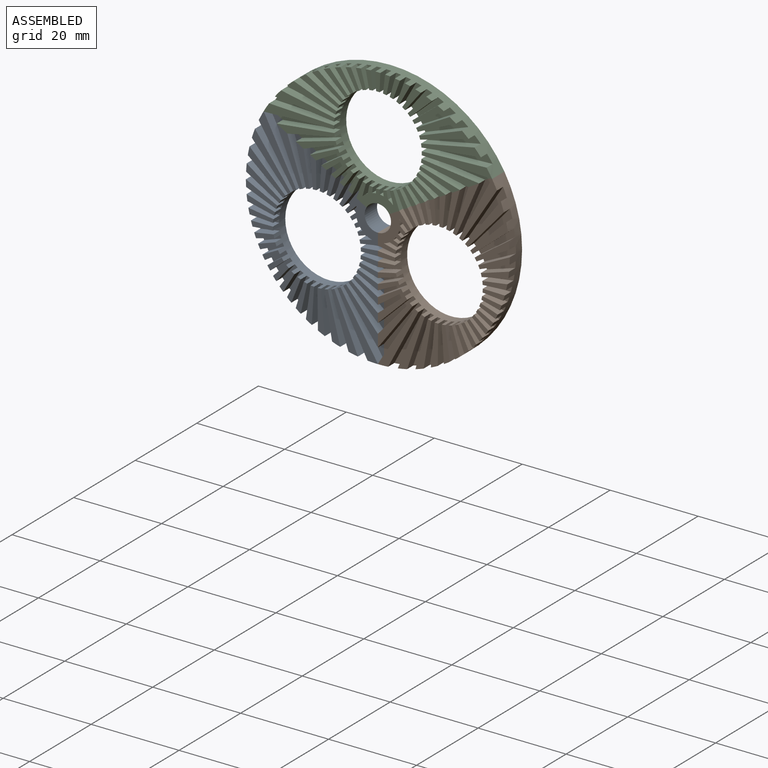
[diagram: assembled view]
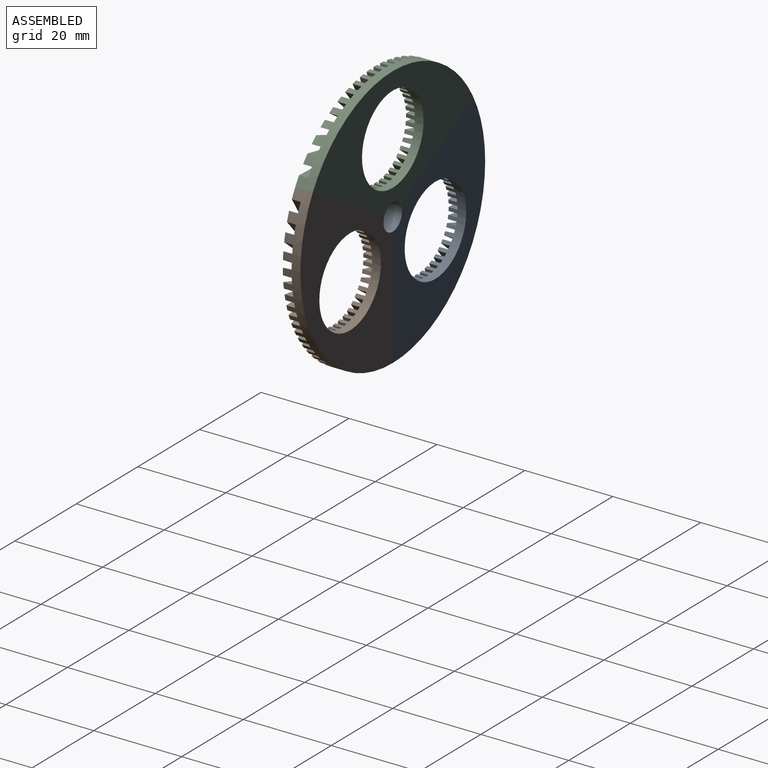
[diagram: assembled view, second angle]
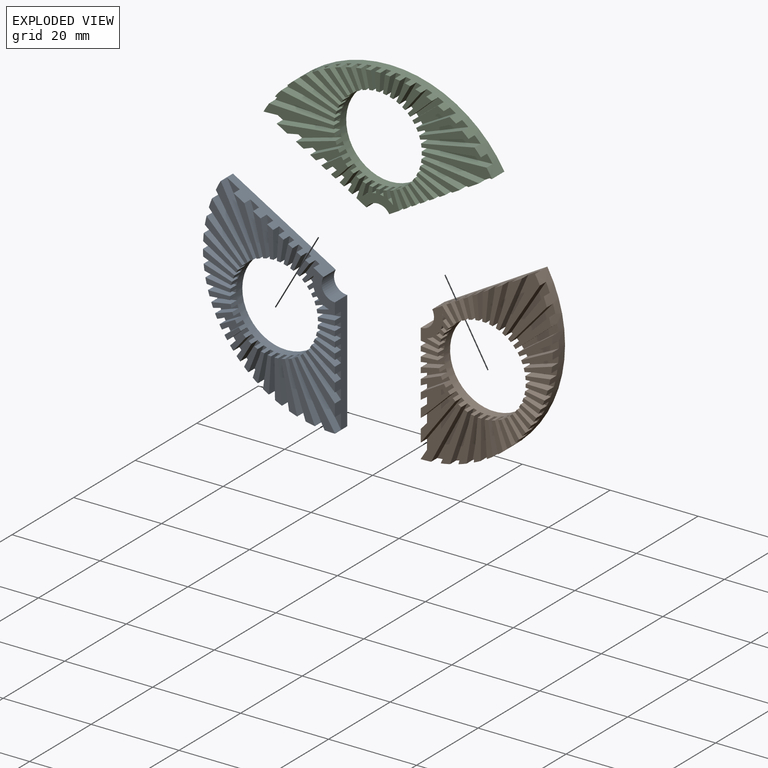
[diagram: exploded view]
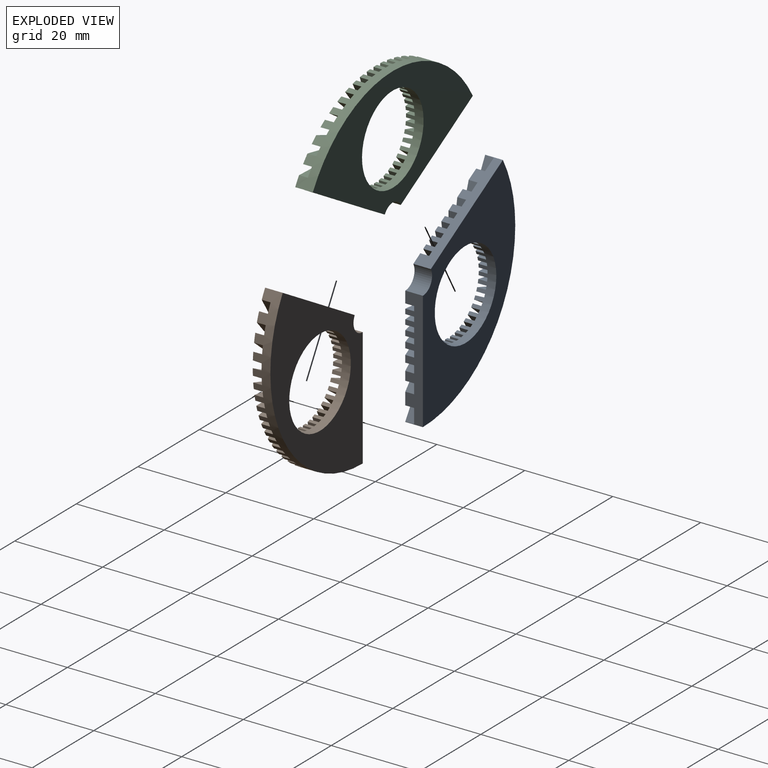
[diagram: exploded view, second angle]
ASSEMBLY  parts=3 mates=2
PART A: 166 faces, bbox 52x4x28.5 mm
  f0: plane 1.24x0.91mm, normal (0,-1,0), area 0.9mm2, adj f8,f9,f51,f163
  f1: plane 1.24x0.91mm, normal (0,-1,0), area 0.9mm2, adj f6,f7,f51,f164
  f2: plane 2.8x1.54mm, normal (0,-1,0), area 2mm2, adj f10,f11,f51,f162
  f3: plane 2.8x1.54mm, normal (0,-1,0), area 2mm2, adj f4,f5,f51,f165
  f4: plane 2.8x2mm, normal (0.96,0,-0.27), area 5.8mm2, adj f3,f51,f108,f165
  f5: plane 2x1.76mm, normal (-0.98,0,0.2), area 3.6mm2, adj f3,f51,f108,f165
  f6: plane 2x1.24mm, normal (0.99,0,-0.12), area 2.5mm2, adj f1,f51,f108,f164
  f7: plane 2x1.03mm, normal (-1,0,0.04), area 2.1mm2, adj f1,f51,f108,f164
  f8: plane 2x1.03mm, normal (1,0,0.04), area 2.1mm2, adj f0,f51,f108,f163
  f9: plane 2x1.24mm, normal (-0.99,0,-0.12), area 2.5mm2, adj f0,f51,f108,f163
  f10: plane 2x1.76mm, normal (0.98,0,0.2), area 3.6mm2, adj f2,f51,f108,f162
  f11: plane 2.8x2mm, normal (-0.96,0,-0.27), area 5.8mm2, adj f2,f51,f108,f162
  f12: plane 23.38x13.5mm, normal (0.5,0,-0.87), area 81.7mm2, adj f14,f15,f16,f17,f18,f19,f34,f35
  f13: plane 15.99x2.03mm, normal (0,-1,0), area 21.8mm2, adj f51,f52,f84,f85,f160
  f14: plane 15.99x2.03mm, normal (0,-1,0), area 21.8mm2, adj f12,f51,f52,f131,f132
  f15: plane 15.98x2.31mm, normal (0,-1,0), area 19.3mm2, adj f12,f51,f129,f131
  f16: plane 10.96x3.28mm, normal (0,-1,0), area 11.8mm2, adj f12,f51,f126,f128
  f17: plane 7.81x3.63mm, normal (0,-1,0), area 7.9mm2, adj f12,f51,f123,f125
  f18: plane 5.74x3.68mm, normal (0,-1,0), area 5.7mm2, adj f12,f51,f120,f122
  f19: plane 4.36x3.65mm, normal (0,-1,0), area 4.5mm2, adj f12,f51,f117,f119
  f20: plane 4.36x3.65mm, normal (0,-1,0), area 4.5mm2, adj f51,f96,f98,f160
  f21: plane 5.74x3.68mm, normal (0,-1,0), area 5.7mm2, adj f51,f93,f95,f160
  f22: plane 7.81x3.63mm, normal (0,-1,0), area 7.9mm2, adj f51,f90,f92,f160
  f23: plane 10.96x3.28mm, normal (0,-1,0), area 11.8mm2, adj f51,f87,f89,f160
  f24: plane 4.25x1.91mm, normal (0,-1,0), area 3.9mm2, adj f51,f52,f155,f157
  f25: plane 4.49x2.68mm, normal (0,-1,0), area 4.3mm2, adj f51,f52,f152,f154
  f26: plane 4.77x3.62mm, normal (0,-1,0), area 5mm2, adj f51,f52,f149,f151
  f27: plane 5.02x4.8mm, normal (0,-1,0), area 6mm2, adj f51,f52,f146,f148
  f28: plane 6.25x5.16mm, normal (0,-1,0), area 7.3mm2, adj f51,f52,f143,f145
  f29: plane 8.02x5.1mm, normal (0,-1,0), area 9.1mm2, adj f51,f52,f140,f142
  f30: plane 10.08x4.71mm, normal (0,-1,0), area 11.5mm2, adj f51,f52,f137,f139
  f31: plane 12.38x3.84mm, normal (0,-1,0), area 14.7mm2, adj f51,f52,f134,f136
  f32: plane 14.79x2.35mm, normal (0,-1,0), area 18.6mm2, adj f51,f52,f132,f133
  f33: plane 4.06x1.24mm, normal (0,-1,0), area 3.7mm2, adj f51,f52,f54,f158
  f34: plane 3.64x3.44mm, normal (0,-1,0), area 3.8mm2, adj f12,f51,f114,f116
  f35: plane 3.77x2.81mm, normal (0,-1,0), area 3.6mm2, adj f12,f51,f111,f113
  f36: plane 4.1x2.35mm, normal (0,-1,0), area 3.7mm2, adj f12,f51,f109,f110
  f37: plane 4.1x2.35mm, normal (0,-1,0), area 3.7mm2, adj f51,f105,f107,f160
  f38: plane 3.77x2.81mm, normal (0,-1,0), area 3.6mm2, adj f51,f102,f104,f160
  f39: plane 3.64x3.44mm, normal (0,-1,0), area 3.8mm2, adj f51,f99,f101,f160
  f40: plane 14.79x2.35mm, normal (0,-1,0), area 18.6mm2, adj f51,f52,f82,f84
  f41: plane 12.38x3.84mm, normal (0,-1,0), area 14.7mm2, adj f51,f52,f79,f81
  f42: plane 10.08x4.71mm, normal (0,-1,0), area 11.5mm2, adj f51,f52,f76,f78
  f43: plane 8.02x5.1mm, normal (0,-1,0), area 9.1mm2, adj f51,f52,f73,f75
  f44: plane 6.25x5.16mm, normal (0,-1,0), area 7.3mm2, adj f51,f52,f70,f72
  f45: plane 5.02x4.8mm, normal (0,-1,0), area 6mm2, adj f51,f52,f67,f69
  f46: plane 4.77x3.62mm, normal (0,-1,0), area 5mm2, adj f51,f52,f64,f66
  f47: plane 4.49x2.68mm, normal (0,-1,0), area 4.3mm2, adj f51,f52,f61,f63
  f48: plane 4.25x1.91mm, normal (0,-1,0), area 3.9mm2, adj f51,f52,f58,f60
  f49: plane 4.06x1.24mm, normal (0,-1,0), area 3.7mm2, adj f51,f52,f55,f57
  f50: plane 15.98x2.31mm, normal (0,-1,0), area 19.3mm2, adj f51,f85,f86,f160
  f51: cylinder r=10mm len=20mm, axis (0,1,0), area 189.7mm2, adj f0,f1,f2,f3,f4,f5,f6,f7
  f52: cylinder r=30mm len=51.96mm, axis (0,1,0), area 192mm2, adj f12,f13,f14,f24,f25,f26,f27,f28
  f53: plane 51.96x28.5mm, normal (0,1,0), area 618.9mm2, adj f12,f51,f52,f160,f161
  f54: plane 4x2mm, normal (1,0,-0.04), area 8mm2, adj f33,f51,f52,f56
  f55: plane 4x2mm, normal (-1,0,-0.04), area 8mm2, adj f49,f51,f52,f56
  f56: plane 4.01x1.12mm, normal (0,-1,0), area 3.8mm2, adj f51,f52,f54,f55
  f57: plane 4.02x2mm, normal (0.99,0,0.12), area 8.1mm2, adj f49,f51,f52,f59
  f58: plane 4.07x2mm, normal (-0.98,0,-0.2), area 8.3mm2, adj f48,f51,f52,f59
  f59: plane 4.15x1.6mm, normal (0,-1,0), area 3.9mm2, adj f51,f52,f57,f58
  f60: plane 4.12x2mm, normal (0.96,0,0.27), area 8.6mm2, adj f48,f51,f52,f62
  f61: plane 4.2x2mm, normal (-0.94,0,-0.35), area 9mm2, adj f47,f51,f52,f62
  f62: plane 4.37x2.31mm, normal (0,-1,0), area 4.3mm2, adj f51,f52,f60,f61
  f63: plane 4.28x2mm, normal (0.91,0,0.42), area 9.4mm2, adj f47,f51,f52,f65
  f64: plane 4.37x2.45mm, normal (-0.87,0,-0.49), area 10mm2, adj f46,f51,f52,f65
  f65: plane 4.64x3.16mm, normal (0,-1,0), area 4.8mm2, adj f51,f52,f63,f64
  f66: plane 4.45x2.97mm, normal (0.83,0,0.55), area 10.7mm2, adj f46,f51,f52,f68
  f67: plane 4.52x3.57mm, normal (-0.78,0,-0.62), area 11.5mm2, adj f45,f51,f52,f68
  f68: plane 4.92x4.21mm, normal (0,-1,0), area 5.7mm2, adj f51,f52,f66,f67
  f69: plane 4.56x4.21mm, normal (0.73,0,0.68), area 12.4mm2, adj f45,f51,f52,f71
  f70: plane 4.96x4.58mm, normal (-0.68,0,-0.73), area 13.5mm2, adj f44,f51,f52,f71
  f71: plane 5.52x5.13mm, normal (0,-1,0), area 6.9mm2, adj f51,f52,f69,f70
  f72: plane 5.75x4.54mm, normal (0.62,0,0.78), area 14.7mm2, adj f44,f51,f52,f74
  f73: plane 6.66x4.44mm, normal (-0.55,0,-0.83), area 16mm2, adj f43,f51,f52,f74
  f74: plane 7.13x5.19mm, normal (0,-1,0), area 8.5mm2, adj f51,f52,f72,f73
  f75: plane 7.61x4.27mm, normal (0.49,0,0.87), area 17.5mm2, adj f43,f51,f52,f77
  f76: plane 8.68x3.99mm, normal (-0.42,0,-0.91), area 19.1mm2, adj f42,f51,f52,f77
  f77: plane 9.04x4.98mm, normal (0,-1,0), area 10.7mm2, adj f51,f52,f75,f76
  f78: plane 9.78x3.62mm, normal (0.35,0,0.94), area 20.9mm2, adj f42,f51,f52,f80
  f79: plane 10.99x3.09mm, normal (-0.27,0,-0.96), area 22.8mm2, adj f41,f51,f52,f80
  f80: plane 11.23x4.38mm, normal (0,-1,0), area 13.5mm2, adj f51,f52,f78,f79
  f81: plane 12.2x2.44mm, normal (0.2,0,0.98), area 24.9mm2, adj f41,f51,f52,f83
  f82: plane 13.48x2mm, normal (-0.12,0,-0.99), area 27.2mm2, adj f40,f51,f52,f83
  f83: plane 13.61x3.23mm, normal (0,-1,0), area 17.2mm2, adj f51,f52,f81,f82
  f84: plane 14.73x2mm, normal (0.04,0,1), area 29.5mm2, adj f13,f40,f51,f52
  f85: plane 15.92x2mm, normal (0.04,0,-1), area 31.9mm2, adj f13,f50,f51,f160
  f86: plane 13.09x2mm, normal (-0.12,0,0.99), area 26.4mm2, adj f50,f51,f88,f160
  f87: plane 10.78x2.15mm, normal (0.2,0,-0.98), area 22mm2, adj f23,f51,f88,f160
  f88: plane 13.22x2.94mm, normal (0,-1,0), area 15.5mm2, adj f51,f86,f87,f160
  f89: plane 9.01x2.53mm, normal (-0.27,0,0.96), area 18.7mm2, adj f23,f51,f91,f160
  f90: plane 7.51x2.78mm, normal (0.35,0,-0.94), area 16mm2, adj f22,f51,f91,f160
  f91: plane 9.26x3.54mm, normal (0,-1,0), area 9.9mm2, adj f51,f89,f90,f160
  f92: plane 6.34x2.92mm, normal (-0.42,0,0.91), area 14mm2, adj f22,f51,f94,f160
  f93: plane 5.33x2.99mm, normal (0.49,0,-0.87), area 12.2mm2, adj f21,f51,f94,f160
  f94: plane 6.7x3.71mm, normal (0,-1,0), area 6.9mm2, adj f51,f92,f93,f160
  f95: plane 4.54x3.03mm, normal (-0.55,0,0.83), area 10.9mm2, adj f21,f51,f97,f160
  f96: plane 3.86x3.05mm, normal (0.62,0,-0.78), area 9.8mm2, adj f20,f51,f97,f160
  f97: plane 5.01x3.69mm, normal (0,-1,0), area 5.2mm2, adj f51,f95,f96,f160
  f98: plane 3.32x3.06mm, normal (-0.68,0,0.73), area 9mm2, adj f20,f51,f100,f160
  f99: plane 3.09x2.85mm, normal (0.73,0,-0.68), area 8.4mm2, adj f39,f51,f100,f160
  f100: plane 3.88x3.66mm, normal (0,-1,0), area 4.2mm2, adj f51,f98,f99,f160
  f101: plane 3.14x2.48mm, normal (-0.78,0,0.62), area 8mm2, adj f39,f51,f103,f160
  f102: plane 3.23x2.16mm, normal (0.83,0,-0.55), area 7.8mm2, adj f38,f51,f103,f160
  f103: plane 3.7x3.13mm, normal (0,-1,0), area 3.8mm2, adj f51,f101,f102,f160
  f104: plane 3.36x2mm, normal (-0.87,0,0.49), area 7.7mm2, adj f38,f51,f106,f160
  f105: plane 3.56x2mm, normal (0.91,0,-0.42), area 7.8mm2, adj f37,f51,f106,f160
  f106: plane 3.92x2.6mm, normal (0,-1,0), area 3.7mm2, adj f51,f104,f105,f160
  f107: plane 3.81x2mm, normal (-0.94,0,0.35), area 8.1mm2, adj f37,f51,f108,f160
  f108: plane 9.75x5.12mm, normal (0,-1,0), area 27.4mm2, adj f4,f5,f6,f7,f8,f9,f10,f11
  f109: plane 3.81x2mm, normal (0.94,0,0.35), area 8.1mm2, adj f12,f36,f51,f108
  f110: plane 3.56x2mm, normal (-0.91,0,-0.42), area 7.8mm2, adj f12,f36,f51,f112
  f111: plane 3.36x2mm, normal (0.87,0,0.49), area 7.7mm2, adj f12,f35,f51,f112
  f112: plane 3.92x2.6mm, normal (0,-1,0), area 3.7mm2, adj f12,f51,f110,f111
  f113: plane 3.23x2.16mm, normal (-0.83,0,-0.55), area 7.8mm2, adj f12,f35,f51,f115
  f114: plane 3.14x2.48mm, normal (0.78,0,0.62), area 8mm2, adj f12,f34,f51,f115
  f115: plane 3.7x3.13mm, normal (0,-1,0), area 3.8mm2, adj f12,f51,f113,f114
  f116: plane 3.09x2.85mm, normal (-0.73,0,-0.68), area 8.4mm2, adj f12,f34,f51,f118
  f117: plane 3.32x3.06mm, normal (0.68,0,0.73), area 9mm2, adj f12,f19,f51,f118
  f118: plane 3.88x3.66mm, normal (0,-1,0), area 4.2mm2, adj f12,f51,f116,f117
  f119: plane 3.86x3.05mm, normal (-0.62,0,-0.78), area 9.8mm2, adj f12,f19,f51,f121
  f120: plane 4.54x3.03mm, normal (0.55,0,0.83), area 10.9mm2, adj f12,f18,f51,f121
  f121: plane 5.01x3.69mm, normal (0,-1,0), area 5.2mm2, adj f12,f51,f119,f120
  f122: plane 5.33x2.99mm, normal (-0.49,0,-0.87), area 12.2mm2, adj f12,f18,f51,f124
  f123: plane 6.34x2.92mm, normal (0.42,0,0.91), area 14mm2, adj f12,f17,f51,f124
  f124: plane 6.7x3.71mm, normal (0,-1,0), area 6.9mm2, adj f12,f51,f122,f123
  f125: plane 7.51x2.78mm, normal (-0.35,0,-0.94), area 16mm2, adj f12,f17,f51,f127
  f126: plane 9.01x2.53mm, normal (0.27,0,0.96), area 18.7mm2, adj f12,f16,f51,f127
  f127: plane 9.26x3.54mm, normal (0,-1,0), area 9.9mm2, adj f12,f51,f125,f126
  f128: plane 10.78x2.15mm, normal (-0.2,0,-0.98), area 22mm2, adj f12,f16,f51,f130
  f129: plane 13.09x2mm, normal (0.12,0,0.99), area 26.4mm2, adj f12,f15,f51,f130
  f130: plane 13.22x2.94mm, normal (0,-1,0), area 15.5mm2, adj f12,f51,f128,f129
  f131: plane 15.92x2mm, normal (-0.04,0,-1), area 31.9mm2, adj f12,f14,f15,f51
  f132: plane 14.73x2mm, normal (-0.04,0,1), area 29.5mm2, adj f14,f32,f51,f52
  f133: plane 13.48x2mm, normal (0.12,0,-0.99), area 27.2mm2, adj f32,f51,f52,f135
  f134: plane 12.2x2.44mm, normal (-0.2,0,0.98), area 24.9mm2, adj f31,f51,f52,f135
  f135: plane 13.61x3.23mm, normal (0,-1,0), area 17.2mm2, adj f51,f52,f133,f134
  f136: plane 10.99x3.09mm, normal (0.27,0,-0.96), area 22.8mm2, adj f31,f51,f52,f138
  f137: plane 9.78x3.62mm, normal (-0.35,0,0.94), area 20.9mm2, adj f30,f51,f52,f138
  f138: plane 11.23x4.38mm, normal (0,-1,0), area 13.5mm2, adj f51,f52,f136,f137
  f139: plane 8.68x3.99mm, normal (0.42,0,-0.91), area 19.1mm2, adj f30,f51,f52,f141
  f140: plane 7.61x4.27mm, normal (-0.49,0,0.87), area 17.5mm2, adj f29,f51,f52,f141
  f141: plane 9.04x4.98mm, normal (0,-1,0), area 10.7mm2, adj f51,f52,f139,f140
  f142: plane 6.66x4.44mm, normal (0.55,0,-0.83), area 16mm2, adj f29,f51,f52,f144
  f143: plane 5.75x4.54mm, normal (-0.62,0,0.78), area 14.7mm2, adj f28,f51,f52,f144
  f144: plane 7.13x5.19mm, normal (0,-1,0), area 8.5mm2, adj f51,f52,f142,f143
  f145: plane 4.96x4.58mm, normal (0.68,0,-0.73), area 13.5mm2, adj f28,f51,f52,f147
  f146: plane 4.56x4.21mm, normal (-0.73,0,0.68), area 12.4mm2, adj f27,f51,f52,f147
  f147: plane 5.52x5.13mm, normal (0,-1,0), area 6.9mm2, adj f51,f52,f145,f146
  f148: plane 4.52x3.57mm, normal (0.78,0,-0.62), area 11.5mm2, adj f27,f51,f52,f150
  f149: plane 4.45x2.97mm, normal (-0.83,0,0.55), area 10.7mm2, adj f26,f51,f52,f150
  f150: plane 4.92x4.21mm, normal (0,-1,0), area 5.7mm2, adj f51,f52,f148,f149
  f151: plane 4.37x2.45mm, normal (0.87,0,-0.49), area 10mm2, adj f26,f51,f52,f153
  f152: plane 4.28x2mm, normal (-0.91,0,0.42), area 9.4mm2, adj f25,f51,f52,f153
  f153: plane 4.64x3.16mm, normal (0,-1,0), area 4.8mm2, adj f51,f52,f151,f152
  f154: plane 4.2x2mm, normal (0.94,0,-0.35), area 9mm2, adj f25,f51,f52,f156
  f155: plane 4.12x2mm, normal (-0.96,0,0.27), area 8.6mm2, adj f24,f51,f52,f156
  f156: plane 4.37x2.31mm, normal (0,-1,0), area 4.3mm2, adj f51,f52,f154,f155
  f157: plane 4.07x2mm, normal (0.98,0,-0.2), area 8.3mm2, adj f24,f51,f52,f159
  f158: plane 4.02x2mm, normal (-0.99,0,0.12), area 8.1mm2, adj f33,f51,f52,f159
  f159: plane 4.15x1.6mm, normal (0,-1,0), area 3.9mm2, adj f51,f52,f157,f158
  f160: plane 23.38x13.5mm, normal (-0.5,0,-0.87), area 81.7mm2, adj f13,f20,f21,f22,f23,f37,f38,f39
  f161: cylinder r=3mm len=5.2mm, axis (0,-1,0), area 25.1mm2, adj f12,f53,f108,f160
  f162: cylinder r=5mm len=2mm, axis (0,1,0), area 2.9mm2, adj f2,f10,f11,f108
  f163: cylinder r=5mm len=2mm, axis (0,1,0), area 1.8mm2, adj f0,f8,f9,f108
  f164: cylinder r=5mm len=2mm, axis (0,1,0), area 1.8mm2, adj f1,f6,f7,f108
  f165: cylinder r=5mm len=2mm, axis (0,1,0), area 2.9mm2, adj f3,f4,f5,f108
PART B: same geometry as A
PART C: same geometry as A
PLACE A rot(axis=(0,-1,0),120deg) t=(0,0,0)mm
PLACE B rot(axis=(0,1,0),120deg) t=(0,0,0)mm
PLACE C at identity
MATE fastened C.f160 <-> A.f12  axis (-0.5,0,-0.87) through (-25.98,0,15)mm
MATE fastened C.f12 <-> B.f160  axis (0.5,0,-0.87) through (25.98,0,15)mm
